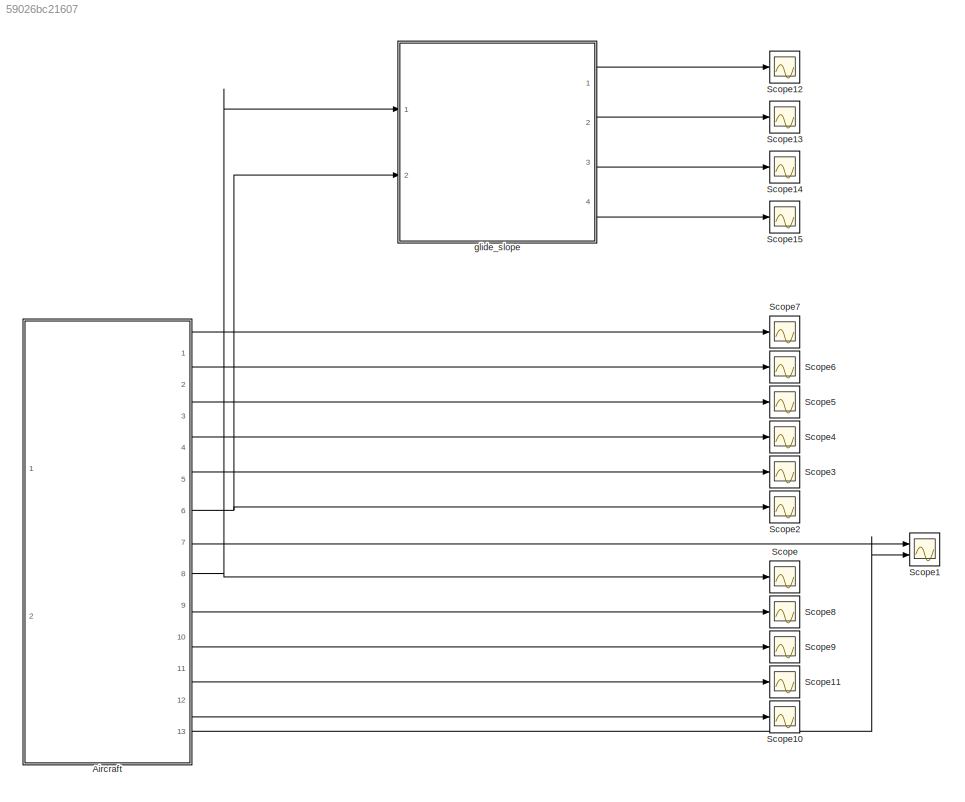
MODEL slx_59026bc21607
KIND model
CONFIG AbsTol = auto
CONFIG EnableMultiTasking = off
CONFIG FixedStep = auto
CONFIG MaxStep = auto
CONFIG MinStep = auto
CONFIG RelTol = 1e-3
CONFIG SampleTimeConstraint = Unconstrained
CONFIG Solver = VariableStepAuto
CONFIG SolverName = VariableStepAuto
CONFIG StartTime = 0.0
CONFIG StopTime = 10.0
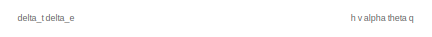
[diagram: Aircraft - part 1/2, top left region]
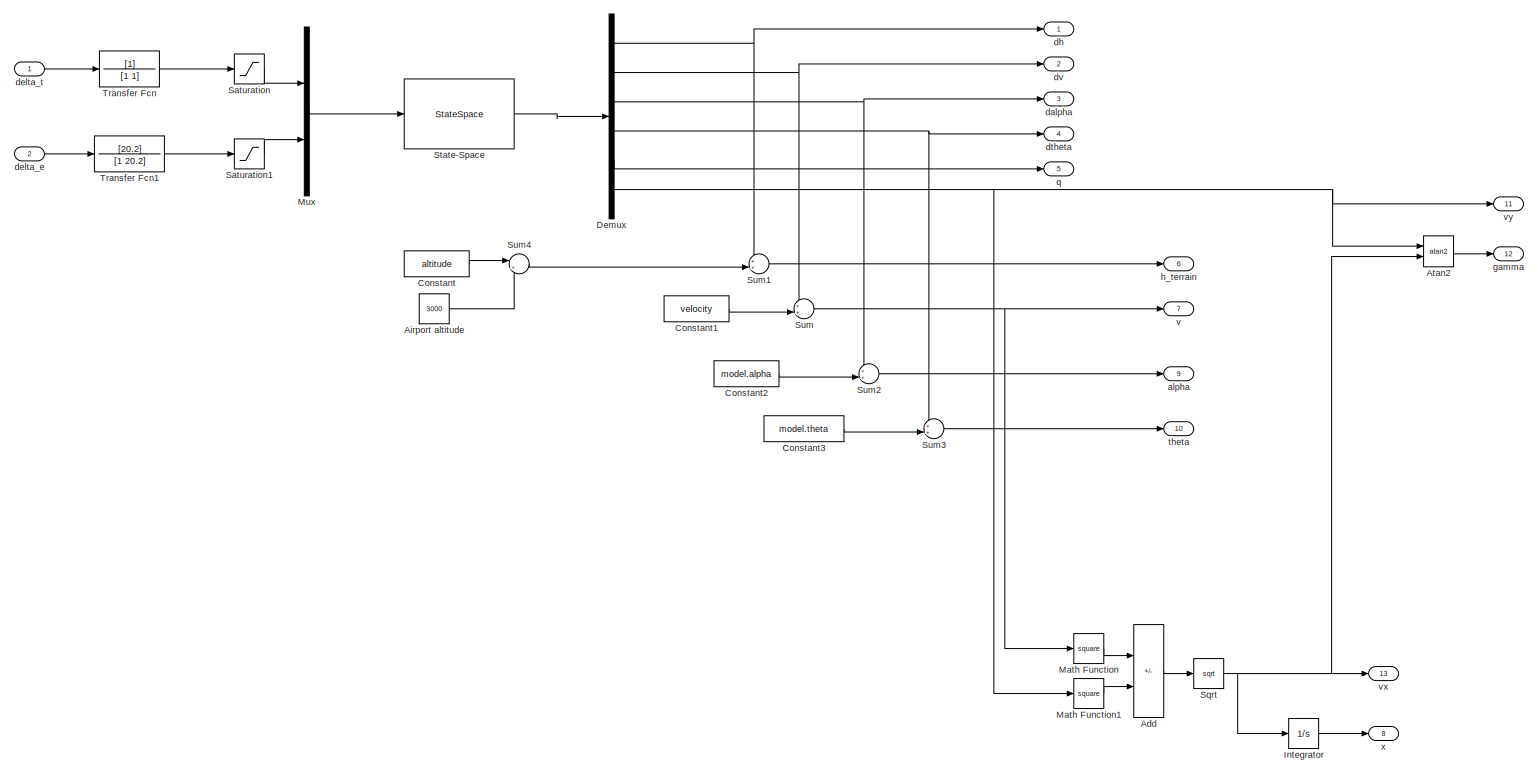
[diagram: Aircraft - part 2/2, most of the canvas]
BLOCK [SubSystem] Aircraft
  Ports = [2, 13]
  RequestExecContextInheritance = off
BLOCK [Sum] Aircraft/Add
  IconShape = rectangular
  Inputs = +-
  Ports = [2, 1]
BLOCK [Constant] Aircraft/Airport altitude
  Value = 3000
BLOCK [Trigonometry] Aircraft/Atan2
  Operator = atan2
  Ports = [2, 1]
BLOCK [Constant] Aircraft/Constant
  Value = altitude
BLOCK [Constant] Aircraft/Constant1
  Value = velocity
BLOCK [Constant] Aircraft/Constant2
  Value = model.alpha
BLOCK [Constant] Aircraft/Constant3
  Value = model.theta
BLOCK [Demux] Aircraft/Demux
  Outputs = 6
  Ports = [1, 6]
BLOCK [Integrator] Aircraft/Integrator
  InitialCondition = -41162
  Ports = [1, 1]
BLOCK [Math] Aircraft/Math Function
  Operator = square
  Ports = [1, 1]
BLOCK [Math] Aircraft/Math Function1
  Operator = square
  Ports = [1, 1]
BLOCK [Mux] Aircraft/Mux
  DisplayOption = bar
  Inputs = 2
  Ports = [2, 1]
BLOCK [Saturate] Aircraft/Saturation
  LowerLimit = 1000-model.thrust
  UpperLimit = 19000-model.thrust
BLOCK [Saturate] Aircraft/Saturation1
  LowerLimit = -25-model.delta_e
  UpperLimit = 25-model.delta_e
BLOCK [Sqrt] Aircraft/Sqrt
BLOCK [StateSpace] Aircraft/State-Space
  A = model.ss_landing.A
  B = model.ss_landing.B
  C = model.ss_landing.C
  D = model.ss_landing.D
  InitialCondition = [0 0 0.01 0 0]
  Ports = [1, 1]
BLOCK [Sum] Aircraft/Sum
  Inputs = ++|
  Ports = [2, 1]
BLOCK [Sum] Aircraft/Sum1
  Inputs = ++|
  Ports = [2, 1]
BLOCK [Sum] Aircraft/Sum2
  Inputs = ++|
  Ports = [2, 1]
BLOCK [Sum] Aircraft/Sum3
  Inputs = ++|
  Ports = [2, 1]
BLOCK [Sum] Aircraft/Sum4
  Inputs = |+-
  Ports = [2, 1]
BLOCK [TransferFcn] Aircraft/Transfer Fcn
  Denominator = [1 1]
BLOCK [TransferFcn] Aircraft/Transfer Fcn1
  Denominator = [1 20.2]
  Numerator = [20.2]
BLOCK [Outport] Aircraft/alpha
  Port = 9
BLOCK [Outport] Aircraft/dalpha
  Port = 3
BLOCK [Inport] Aircraft/delta_e
  Port = 2
BLOCK [Inport] Aircraft/delta_t
BLOCK [Outport] Aircraft/dh
BLOCK [Outport] Aircraft/dtheta
  Port = 4
BLOCK [Outport] Aircraft/dv
  Port = 2
BLOCK [Outport] Aircraft/gamma
  Port = 12
BLOCK [Outport] Aircraft/h_terrain
  Port = 6
BLOCK [Outport] Aircraft/q
  Port = 5
BLOCK [Outport] Aircraft/theta
  Port = 10
BLOCK [Outport] Aircraft/v
  Port = 7
BLOCK [Outport] Aircraft/vx
  Port = 13
BLOCK [Outport] Aircraft/vy
  Port = 11
BLOCK [Outport] Aircraft/x
  Port = 8
BLOCK [Scope] Scope
  Floating = off
  NumInputPorts = 1
  Ports = [1]
  ScopeSpecificationString = Simulink.scopes.TimeScopeBlockCfg('CurrentConfiguration', extmgr.ConfigurationSet(extmgr.Configuration('Core','General UI',true),extmgr.Configuration('Core','Source UI',true),extmgr.Configuration('Sources','WiredSimulink',true),extmgr.Configuration('Visuals','Time Domain',true,'SerializedDisplays',{struct('MinYLimReal','-41546.64848','MaxYLimReal','-37700.16367','YLabelReal','','MinYLimMag','   0....<+1392ch>
BLOCK [Scope] Scope1
  Floating = off
  NumInputPorts = 2
  Ports = [2]
  ScopeSpecificationString = Simulink.scopes.TimeScopeBlockCfg('CurrentConfiguration', extmgr.ConfigurationSet(extmgr.Configuration('Core','General UI',true),extmgr.Configuration('Core','Source UI',true),extmgr.Configuration('Sources','WiredSimulink',true,'DataLoggingVariableName','ScopeData1'),extmgr.Configuration('Visuals','Time Domain',true,'SerializedDisplays',{struct('MinYLimReal','293.4751','MaxYLimReal','358.57406','YL...<+1423ch>
BLOCK [Scope] Scope10
  Floating = off
  NumInputPorts = 1
  Ports = [1]
  ScopeSpecificationString = Simulink.scopes.TimeScopeBlockCfg('CurrentConfiguration', extmgr.ConfigurationSet(extmgr.Configuration('Core','General UI',true),extmgr.Configuration('Core','Source UI',true),extmgr.Configuration('Sources','WiredSimulink',true,'DataLoggingVariableName','ScopeData10'),extmgr.Configuration('Visuals','Time Domain',true,'SerializedDisplays',{struct('MinYLimReal','-0.41531','MaxYLimReal','0.03747','YLa...<+1401ch>
BLOCK [Scope] Scope11
  Floating = off
  NumInputPorts = 1
  Ports = [1]
  ScopeSpecificationString = Simulink.scopes.TimeScopeBlockCfg('CurrentConfiguration', extmgr.ConfigurationSet(extmgr.Configuration('Core','General UI',true),extmgr.Configuration('Core','Source UI',true),extmgr.Configuration('Sources','WiredSimulink',true,'DataLoggingVariableName','ScopeData11'),extmgr.Configuration('Visuals','Time Domain',true,'SerializedDisplays',{struct('MinYLimReal','-142.94594','MaxYLimReal','13.2802','Y...<+1411ch>
BLOCK [Scope] Scope12
  Floating = off
  NumInputPorts = 1
  Ports = [1]
  ScopeSpecificationString = Simulink.scopes.TimeScopeBlockCfg('CurrentConfiguration', extmgr.ConfigurationSet(extmgr.Configuration('Core','General UI',true),extmgr.Configuration('Core','Source UI',true),extmgr.Configuration('Sources','WiredSimulink',true,'DataLoggingVariableName','ScopeData12'),extmgr.Configuration('Visuals','Time Domain',true,'SerializedDisplays',{struct('MinYLimReal','1975.78186','MaxYLimReal','2177.36758'...<+1425ch>
BLOCK [Scope] Scope13
  Floating = off
  NumInputPorts = 1
  Ports = [1]
  ScopeSpecificationString = Simulink.scopes.TimeScopeBlockCfg('CurrentConfiguration', extmgr.ConfigurationSet(extmgr.Configuration('Core','General UI',true),extmgr.Configuration('Core','Source UI',true),extmgr.Configuration('Sources','WiredSimulink',true,'DataLoggingVariableName','ScopeData13'),extmgr.Configuration('Visuals','Time Domain',true,'SerializedDisplays',{struct('MinYLimReal','-285.99998','MaxYLimReal','-80.06396',...<+1417ch>
BLOCK [Scope] Scope14
  Floating = off
  NumInputPorts = 1
  Ports = [1]
  ScopeSpecificationString = Simulink.scopes.TimeScopeBlockCfg('CurrentConfiguration', extmgr.ConfigurationSet(extmgr.Configuration('Core','General UI',true),extmgr.Configuration('Core','Source UI',true),extmgr.Configuration('Sources','WiredSimulink',true,'DataLoggingVariableName','ScopeData14'),extmgr.Configuration('Visuals','Time Domain',true,'SerializedDisplays',{struct('MinYLimReal','0.04486','MaxYLimReal','0.05037','YLab...<+1401ch>
BLOCK [Scope] Scope15
  Floating = off
  NumInputPorts = 1
  Ports = [1]
  ScopeSpecificationString = Simulink.scopes.TimeScopeBlockCfg('CurrentConfiguration', extmgr.ConfigurationSet(extmgr.Configuration('Core','General UI',true),extmgr.Configuration('Core','Source UI',true),extmgr.Configuration('Sources','WiredSimulink',true,'DataLoggingVariableName','ScopeData15'),extmgr.Configuration('Visuals','Time Domain',true,'SerializedDisplays',{struct('MinYLimReal','-0.0075','MaxYLimReal','-0.00199','YLa...<+1401ch>
BLOCK [Scope] Scope2
  Floating = off
  NumInputPorts = 1
  Ports = [1]
  ScopeSpecificationString = Simulink.scopes.TimeScopeBlockCfg('CurrentConfiguration', extmgr.ConfigurationSet(extmgr.Configuration('Core','General UI',true),extmgr.Configuration('Core','Source UI',true),extmgr.Configuration('Sources','WiredSimulink',true,'DataLoggingVariableName','ScopeData2'),extmgr.Configuration('Visuals','Time Domain',true,'SerializedDisplays',{struct('MinYLimReal','1696.85081','MaxYLimReal','2033.68324',...<+1421ch>
BLOCK [Scope] Scope3
  Floating = off
  NumInputPorts = 1
  Ports = [1]
  ScopeSpecificationString = Simulink.scopes.TimeScopeBlockCfg('CurrentConfiguration', extmgr.ConfigurationSet(extmgr.Configuration('Core','General UI',true),extmgr.Configuration('Core','Source UI',true),extmgr.Configuration('Sources','WiredSimulink',true,'DataLoggingVariableName','ScopeData3'),extmgr.Configuration('Visuals','Time Domain',true,'SerializedDisplays',{struct('MinYLimReal','-0.40102','MaxYLimReal','0.04456','YLab...<+1399ch>
BLOCK [Scope] Scope4
  Floating = off
  NumInputPorts = 1
  Ports = [1]
  ScopeSpecificationString = Simulink.scopes.TimeScopeBlockCfg('CurrentConfiguration', extmgr.ConfigurationSet(extmgr.Configuration('Core','General UI',true),extmgr.Configuration('Core','Source UI',true),extmgr.Configuration('Sources','WiredSimulink',true,'DataLoggingVariableName','ScopeData4'),extmgr.Configuration('Visuals','Time Domain',true,'SerializedDisplays',{struct('MinYLimReal','-0.90283','MaxYLimReal','0.10031','YLab...<+1399ch>
BLOCK [Scope] Scope5
  Floating = off
  NumInputPorts = 1
  Ports = [1]
  ScopeSpecificationString = Simulink.scopes.TimeScopeBlockCfg('CurrentConfiguration', extmgr.ConfigurationSet(extmgr.Configuration('Core','General UI',true),extmgr.Configuration('Core','Source UI',true),extmgr.Configuration('Sources','WiredSimulink',true,'DataLoggingVariableName','ScopeData5'),extmgr.Configuration('Visuals','Time Domain',true,'SerializedDisplays',{struct('MinYLimReal','-0.42662','MaxYLimReal','0.05851','YLab...<+1399ch>
BLOCK [Scope] Scope6
  Floating = off
  NumInputPorts = 1
  Ports = [1]
  ScopeSpecificationString = Simulink.scopes.TimeScopeBlockCfg('CurrentConfiguration', extmgr.ConfigurationSet(extmgr.Configuration('Core','General UI',true),extmgr.Configuration('Core','Source UI',true),extmgr.Configuration('Sources','WiredSimulink',true,'DataLoggingVariableName','ScopeData6'),extmgr.Configuration('Visuals','Time Domain',true,'SerializedDisplays',{struct('MinYLimReal','-6.50802','MaxYLimReal','58.57218','YLa...<+1403ch>
BLOCK [Scope] Scope7
  Floating = off
  NumInputPorts = 1
  Ports = [1]
  ScopeSpecificationString = Simulink.scopes.TimeScopeBlockCfg('CurrentConfiguration', extmgr.ConfigurationSet(extmgr.Configuration('Core','General UI',true),extmgr.Configuration('Core','Source UI',true),extmgr.Configuration('Sources','WiredSimulink',true,'DataLoggingVariableName','ScopeData7'),extmgr.Configuration('Visuals','Time Domain',true,'SerializedDisplays',{struct('MinYLimReal','-303.14919','MaxYLimReal','33.68324','Y...<+1411ch>
BLOCK [Scope] Scope8
  Floating = off
  NumInputPorts = 1
  Ports = [1]
  ScopeSpecificationString = Simulink.scopes.TimeScopeBlockCfg('CurrentConfiguration', extmgr.ConfigurationSet(extmgr.Configuration('Core','General UI',true),extmgr.Configuration('Core','Source UI',true),extmgr.Configuration('Sources','WiredSimulink',true,'DataLoggingVariableName','ScopeData8'),extmgr.Configuration('Visuals','Time Domain',true,'SerializedDisplays',{struct('MinYLimReal','10.02445','MaxYLimReal','10.50959','YLa...<+1405ch>
BLOCK [Scope] Scope9
  Floating = off
  NumInputPorts = 1
  Ports = [1]
  ScopeSpecificationString = Simulink.scopes.TimeScopeBlockCfg('CurrentConfiguration', extmgr.ConfigurationSet(extmgr.Configuration('Core','General UI',true),extmgr.Configuration('Core','Source UI',true),extmgr.Configuration('Sources','WiredSimulink',true,'DataLoggingVariableName','ScopeData9'),extmgr.Configuration('Visuals','Time Domain',true,'SerializedDisplays',{struct('MinYLimReal','-0.72043','MaxYLimReal','0.28272','YLab...<+1400ch>
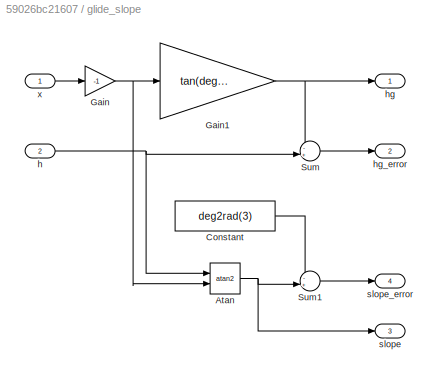
BLOCK [SubSystem] glide_slope
  Ports = [2, 4]
  RequestExecContextInheritance = off
BLOCK [Trigonometry] glide_slope/Atan
  Operator = atan2
  Ports = [2, 1]
BLOCK [Constant] glide_slope/Constant
  Value = deg2rad(3)
BLOCK [Gain] glide_slope/Gain
  Gain = -1
BLOCK [Gain] glide_slope/Gain1
  Gain = tan(deg2rad(3))
BLOCK [Sum] glide_slope/Sum
  Inputs = -+|
  Ports = [2, 1]
BLOCK [Sum] glide_slope/Sum1
  Inputs = -+|
  Ports = [2, 1]
BLOCK [Inport] glide_slope/h
  Port = 2
BLOCK [Outport] glide_slope/hg
BLOCK [Outport] glide_slope/hg_error
  Port = 2
BLOCK [Outport] glide_slope/slope
  Port = 3
BLOCK [Outport] glide_slope/slope_error
  Port = 4
BLOCK [Inport] glide_slope/x
ANNOTATION Aircraft: delta_t delta_e
ANNOTATION Aircraft: h v alpha theta q
LINE Aircraft/Add:1 -> Aircraft/Sqrt:1
LINE Aircraft/Airport altitude:1 -> Aircraft/Sum4:2
LINE Aircraft/Atan2:1 -> Aircraft/gamma:1
LINE Aircraft/Constant1:1 -> Aircraft/Sum:2
LINE Aircraft/Constant2:1 -> Aircraft/Sum2:2
LINE Aircraft/Constant3:1 -> Aircraft/Sum3:2
LINE Aircraft/Constant:1 -> Aircraft/Sum4:1
NET Aircraft/Demux:1 -> Aircraft/Sum1:1, Aircraft/dh:1
NET Aircraft/Demux:2 -> Aircraft/Sum:1, Aircraft/dv:1
NET Aircraft/Demux:3 -> Aircraft/Sum2:1, Aircraft/dalpha:1
NET Aircraft/Demux:4 -> Aircraft/Sum3:1, Aircraft/dtheta:1
LINE Aircraft/Demux:5 -> Aircraft/q:1
NET Aircraft/Demux:6 -> Aircraft/Atan2:1, Aircraft/Math Function1:1, Aircraft/vy:1
LINE Aircraft/Integrator:1 -> Aircraft/x:1
LINE Aircraft/Math Function1:1 -> Aircraft/Add:2
LINE Aircraft/Math Function:1 -> Aircraft/Add:1
LINE Aircraft/Mux:1 -> Aircraft/State-Space:1
LINE Aircraft/Saturation1:1 -> Aircraft/Mux:2
LINE Aircraft/Saturation:1 -> Aircraft/Mux:1
NET Aircraft/Sqrt:1 -> Aircraft/Atan2:2, Aircraft/Integrator:1, Aircraft/vx:1
LINE Aircraft/State-Space:1 -> Aircraft/Demux:1
LINE Aircraft/Sum1:1 -> Aircraft/h_terrain:1
LINE Aircraft/Sum2:1 -> Aircraft/alpha:1
LINE Aircraft/Sum3:1 -> Aircraft/theta:1
LINE Aircraft/Sum4:1 -> Aircraft/Sum1:2
NET Aircraft/Sum:1 -> Aircraft/Math Function:1, Aircraft/v:1
LINE Aircraft/Transfer Fcn1:1 -> Aircraft/Saturation1:1
LINE Aircraft/Transfer Fcn:1 -> Aircraft/Saturation:1
LINE Aircraft/delta_e:1 -> Aircraft/Transfer Fcn1:1
LINE Aircraft/delta_t:1 -> Aircraft/Transfer Fcn:1
LINE Aircraft:1 -> Scope7:1
LINE Aircraft:10 -> Scope9:1
LINE Aircraft:11 -> Scope11:1
LINE Aircraft:12 -> Scope10:1
LINE Aircraft:13 -> Scope1:2
LINE Aircraft:2 -> Scope6:1
LINE Aircraft:3 -> Scope5:1
LINE Aircraft:4 -> Scope4:1
LINE Aircraft:5 -> Scope3:1
NET Aircraft:6 -> Scope2:1, glide_slope:2
LINE Aircraft:7 -> Scope1:1
NET Aircraft:8 -> Scope:1, glide_slope:1
LINE Aircraft:9 -> Scope8:1
NET glide_slope/Atan:1 -> glide_slope/Sum1:2, glide_slope/slope:1
LINE glide_slope/Constant:1 -> glide_slope/Sum1:1
NET glide_slope/Gain1:1 -> glide_slope/Sum:1, glide_slope/hg:1
NET glide_slope/Gain:1 -> glide_slope/Atan:2, glide_slope/Gain1:1
LINE glide_slope/Sum1:1 -> glide_slope/slope_error:1
LINE glide_slope/Sum:1 -> glide_slope/hg_error:1
NET glide_slope/h:1 -> glide_slope/Atan:1, glide_slope/Sum:2
LINE glide_slope/x:1 -> glide_slope/Gain:1
LINE glide_slope:1 -> Scope12:1
LINE glide_slope:2 -> Scope13:1
LINE glide_slope:3 -> Scope14:1
LINE glide_slope:4 -> Scope15:1
note: NET lines group one-source signal fan-out (src -> all destinations, sorted); 1:1 wires keep LINE
